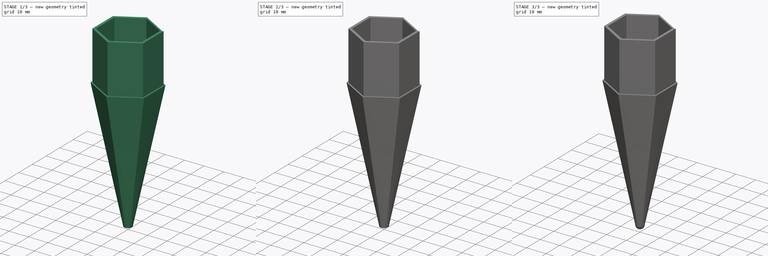
[diagram: build sequence overview — one tinted view per stage of 3, left to right]
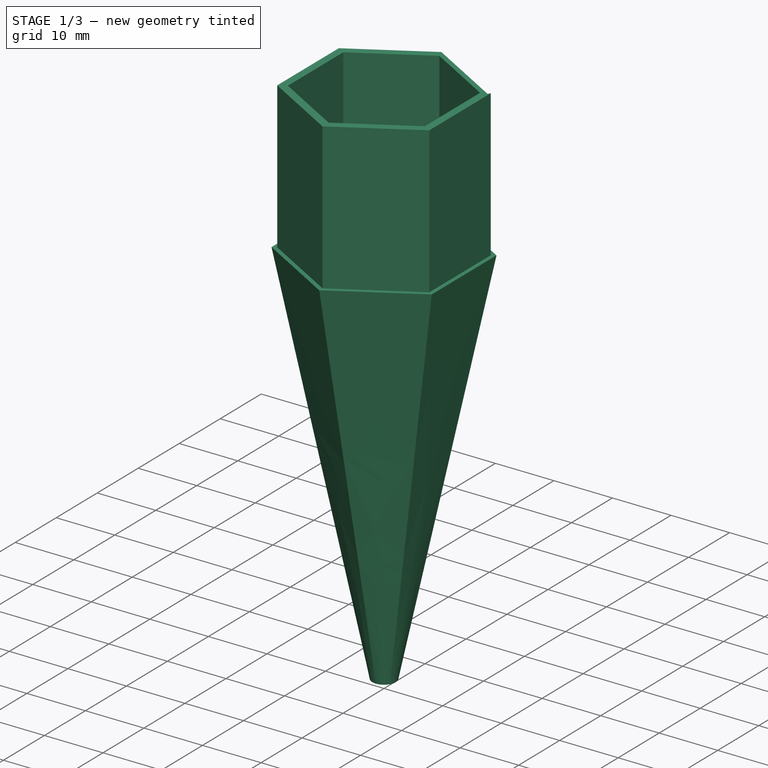
[diagram: stage 1 of 3 — iso view after this stage's code; geometry added in this stage tinted green]
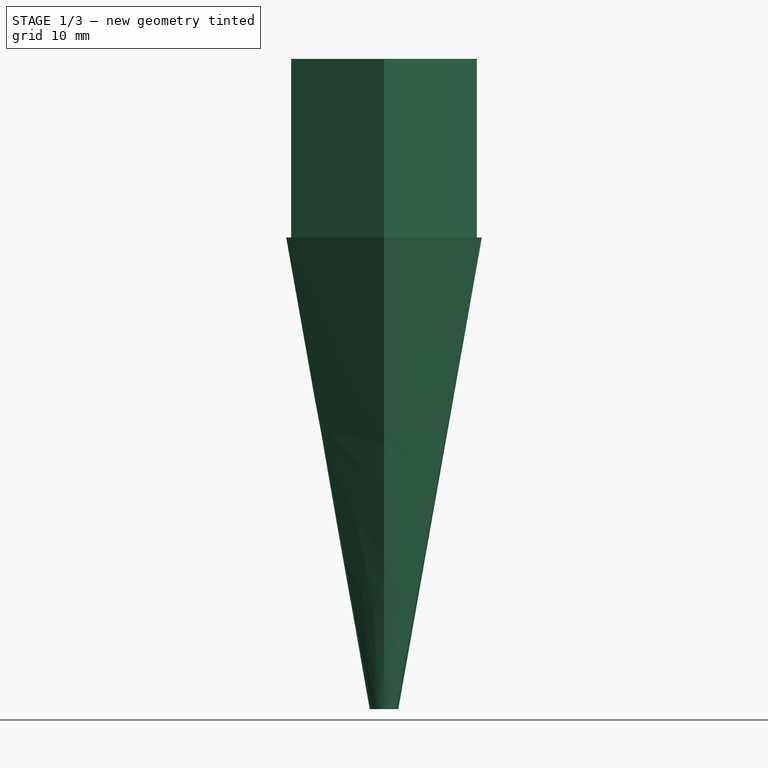
[diagram: stage 1 of 3 — front view after this stage's code; geometry added in this stage tinted green]
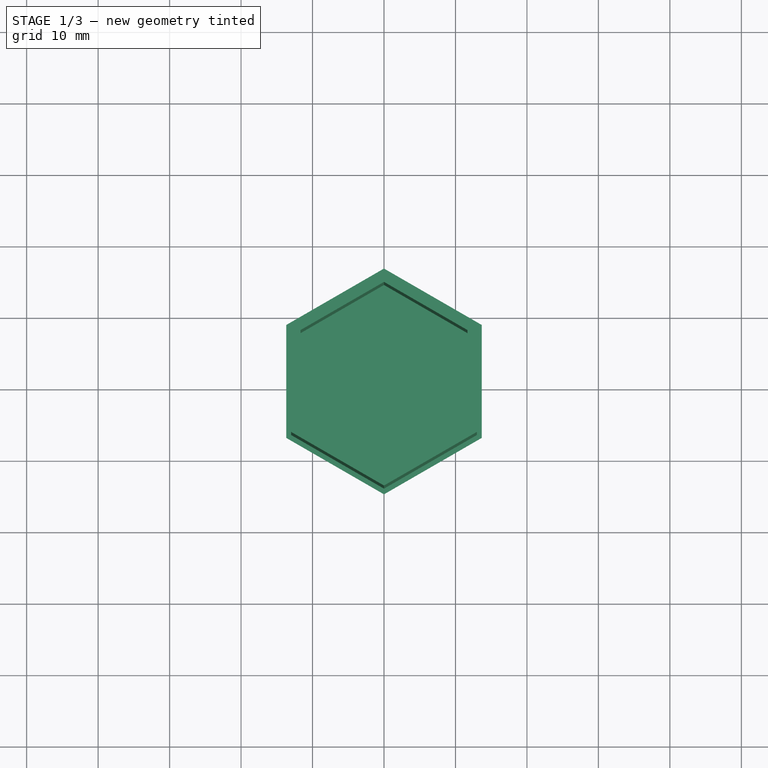
[diagram: stage 1 of 3 — top view after this stage's code; geometry added in this stage tinted green]
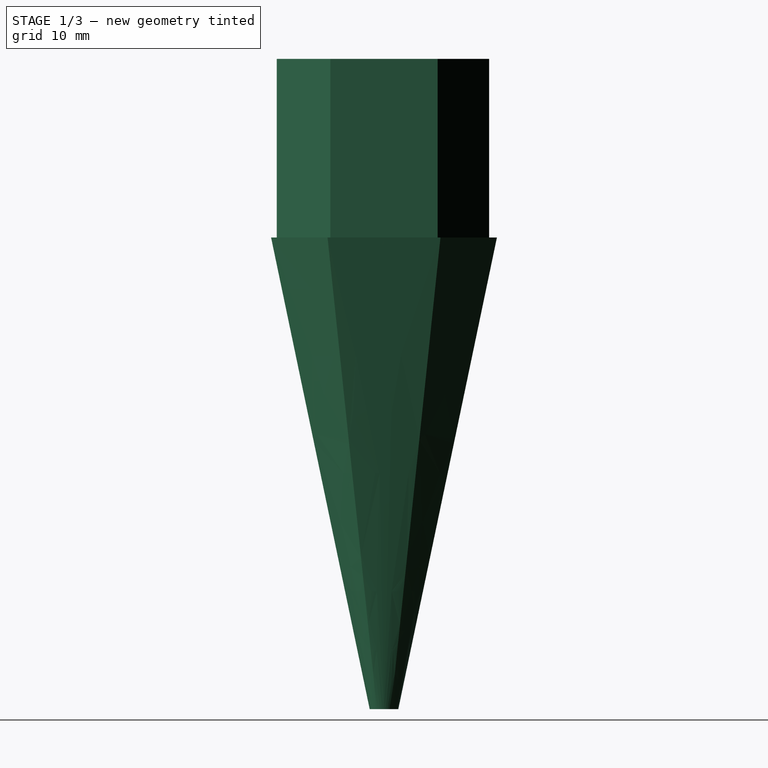
[diagram: stage 1 of 3 — right view after this stage's code; geometry added in this stage tinted green]
FCSTD DOCUMENT  (FreeCAD 0.21R33771 (Git))
Label: nosecone
License: All rights reserved
LicenseURL: http://en.wikipedia.org/wiki/All_rights_reserved
objects: Sketcher::SketchObject×7, PartDesign::Pocket×3, PartDesign::Pad×1, PartDesign::AdditiveLoft×1, PartDesign::Revolution×1, PartDesign::Body×1
note: 20 computed .brp shape members not serialized (recipe doc carries the construction recipe); baked Part::Feature solids carry a one-line shape summary decoded from their .brp

FEATURE [Sketcher::SketchObject] Sketch
  FullyConstrained = false
  MapMode = 5
  Support = -> [XY_Plane]
  sketch-geometry (15):
    g0: LineSegment StartX=-0.50397 StartY=14.7134 StartZ=0 EndX=-12.9849 EndY=7.50882 EndZ=0
    g1: LineSegment StartX=-12.9849 StartY=7.50882 StartZ=0 EndX=-12.99 EndY=-7.5 EndZ=0
    g2: LineSegment StartX=-12.99 StartY=-7.5 StartZ=0 EndX=0 EndY=-14.9997 EndZ=0
    g3: LineSegment StartX=0 StartY=-14.9997 StartZ=0 EndX=12.99 EndY=-7.5 EndZ=0
    g4: LineSegment StartX=12.99 StartY=-7.5 StartZ=0 EndX=12.99 EndY=7.5 EndZ=0
    g5: Circle CenterX=0 CenterY=0 CenterZ=0 NormalX=0 NormalY=0 NormalZ=1 AngleXU=0 Radius=14.9997
    g6: LineSegment StartX=-0.50397 StartY=14.7134 StartZ=0 EndX=12.74 EndY=7.06699 EndZ=0
    g7: LineSegment StartX=12.74 StartY=7.06699 StartZ=0 EndX=12.99 EndY=7.5 EndZ=0
    g8: LineSegment StartX=0 StartY=13.4997 StartZ=0 EndX=-11.6911 EndY=6.74983 EndZ=0
    g9: LineSegment StartX=-11.6911 StartY=6.74983 StartZ=0 EndX=-11.6911 EndY=-6.74983 EndZ=0
    g10: LineSegment StartX=-11.6911 StartY=-6.74983 StartZ=0 EndX=0 EndY=-13.4997 EndZ=0
    g11: LineSegment StartX=-7e-16 StartY=-13.4997 StartZ=0 EndX=11.6911 EndY=-6.74983 EndZ=0
    g12: LineSegment StartX=11.6911 StartY=-6.74983 StartZ=0 EndX=11.6911 EndY=6.74983 EndZ=0
    g13: LineSegment StartX=11.6911 StartY=6.74983 StartZ=0 EndX=0 EndY=13.4997 EndZ=0
    g14: Circle CenterX=0 CenterY=0 CenterZ=0 NormalX=0 NormalY=0 NormalZ=1 AngleXU=0 Radius=13.4997
  constraints (33):
    c: Coincident(g0,g1)
    c: Coincident(g1,g2)
    c: Coincident(g2,g3)
    c: Coincident(g3,g4)
    c: PointOnObject(g0,g5)
    c: PointOnObject(g1,g5)
    c: PointOnObject(g2,g5)
    c: PointOnObject(g3,g5)
    c: PointOnObject(g4,g5)
    c: Coincident(g5,g-1)
    c: Coincident(g6,g7)
    c: Coincident(g7,g4)
    c: Vertical(g4)
    c: Angle(g7,g4) = 0.523599
    c: Distance(g7) = 0.5
    c: Angle(g7,g6) = 1.5708
    c: Coincident(g0,g6)
    c: Coincident(g8,g9)
    c: Coincident(g9,g10)
    c: Coincident(g10,g11)
    c: Coincident(g11,g12)
    c: Coincident(g12,g13)
    c: Coincident(g13,g8)
    c: Equal(g8, g9-g13) x5
    c: PointOnObject(g8,g14)
    c: PointOnObject(g9,g14)
    c: PointOnObject(g10,g14)
    c: PointOnObject(g11,g14)
    c: PointOnObject(g12,g14)
    c: PointOnObject(g13,g14)
    c: Coincident(g14,g5)
    c: PointOnObject(g13,g-2)
    c: DistanceY(g2,g10) = 1.5
FEATURE [PartDesign::Pad] Pad
  Direction = (0,0,1)
  Length = 25
  Length2 = 10
  Profile = -> Sketch
  ReferenceAxis = -> Sketch [N_Axis]
  Type = 0
FEATURE [Sketcher::SketchObject] Sketch001
  ExternalGeometry = -> [Pad]
  FullyConstrained = true
  MapMode = 5
  Placement = pos=(0,0,0) rot=(1,0,0;3.14159rad)
  Support = -> [Pad]
  sketch-geometry (7):
    g0: LineSegment StartX=0 StartY=15.7997 StartZ=0 EndX=-13.6829 EndY=7.89983 EndZ=0
    g1: LineSegment StartX=-13.6829 StartY=7.89983 StartZ=0 EndX=-13.6829 EndY=-7.89983 EndZ=0
    g2: LineSegment StartX=-13.6829 StartY=-7.89983 StartZ=0 EndX=-1.67e-13 EndY=-15.7997 EndZ=0
    g3: LineSegment StartX=-1.67e-13 StartY=-15.7997 StartZ=0 EndX=13.6829 EndY=-7.89983 EndZ=0
    g4: LineSegment StartX=13.6829 StartY=-7.89983 StartZ=0 EndX=13.6829 EndY=7.89983 EndZ=0
    g5: LineSegment StartX=13.6829 StartY=7.89983 StartZ=0 EndX=0 EndY=15.7997 EndZ=0
    g6: Circle CenterX=0 CenterY=0 CenterZ=0 NormalX=0 NormalY=0 NormalZ=1 AngleXU=0 Radius=15.7997
  constraints (16):
    c: Coincident(g0,g1)
    c: Coincident(g1,g2)
    c: Coincident(g2,g3)
    c: Coincident(g3,g4)
    c: Coincident(g4,g5)
    c: Coincident(g5,g0)
    c: Equal(g0, g1-g5) x5
    c: PointOnObject(g0,g6)
    c: PointOnObject(g1,g6)
    c: PointOnObject(g2,g6)
    c: PointOnObject(g3,g6)
    c: PointOnObject(g4,g6)
    c: PointOnObject(g5,g6)
    c: Coincident(g6,g-1)
    c: PointOnObject(g5,g-2)
    c: DistanceY(g-3,g0) = 0.8
FEATURE [Sketcher::SketchObject] Sketch002
  AttachmentOffset = pos=(0,0,-66) rot=(0,0,1;0rad)
  FullyConstrained = true
  MapMode = 5
  Placement = pos=(0,0,-66) rot=(0,0,1;0rad)
  Support = -> [XY_Plane]
  sketch-geometry (1):
    g0: Circle CenterX=0 CenterY=0 CenterZ=0 NormalX=0 NormalY=0 NormalZ=1 AngleXU=0 Radius=2
  constraints (2):
    c: Coincident(g0,g-1)
    c: Radius(g0) = 2
FEATURE [PartDesign::AdditiveLoft] AdditiveLoft
  BaseFeature = -> Pad
  Closed = false
  Profile = -> Sketch001
  Ruled = false
  Sections = -> [Sketch002]
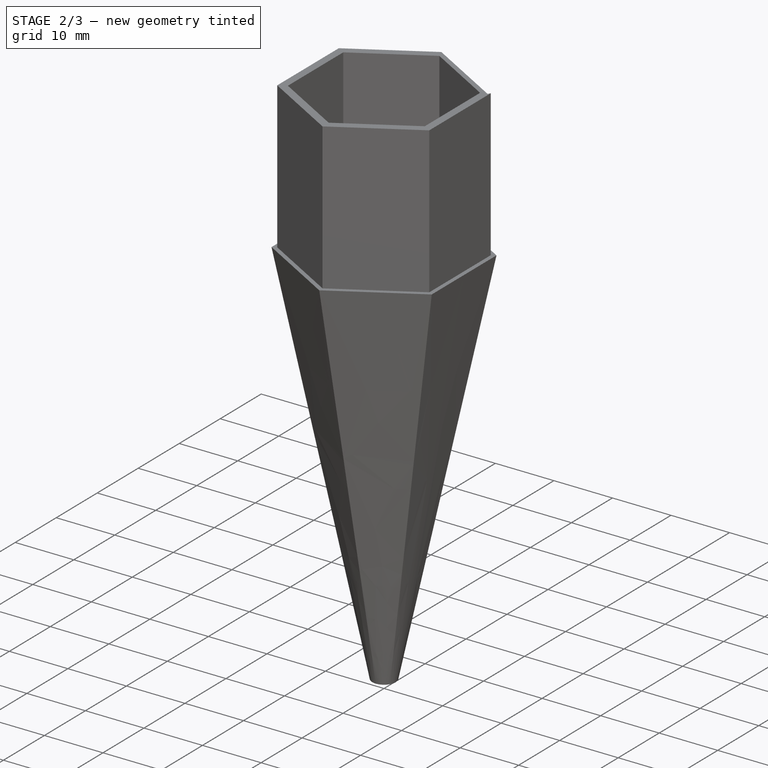
[diagram: stage 2 of 3 — iso view after this stage's code; geometry added in this stage tinted green]
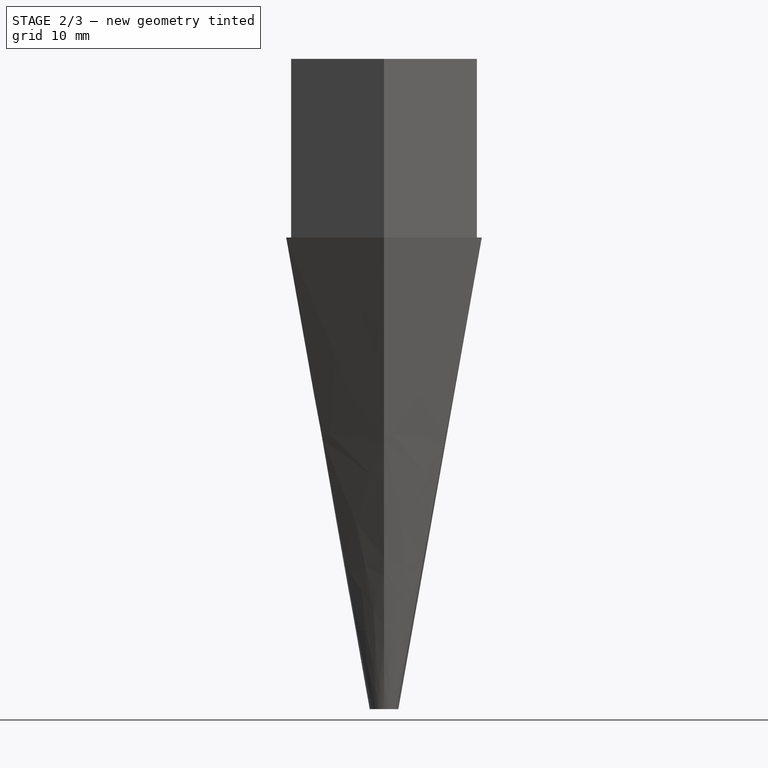
[diagram: stage 2 of 3 — front view after this stage's code; geometry added in this stage tinted green]
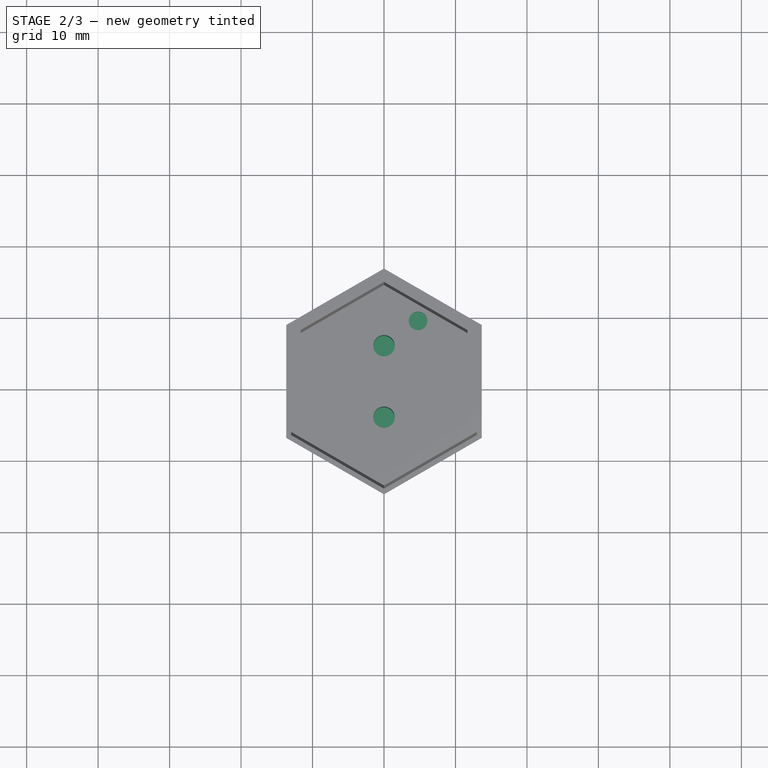
[diagram: stage 2 of 3 — top view after this stage's code; geometry added in this stage tinted green]
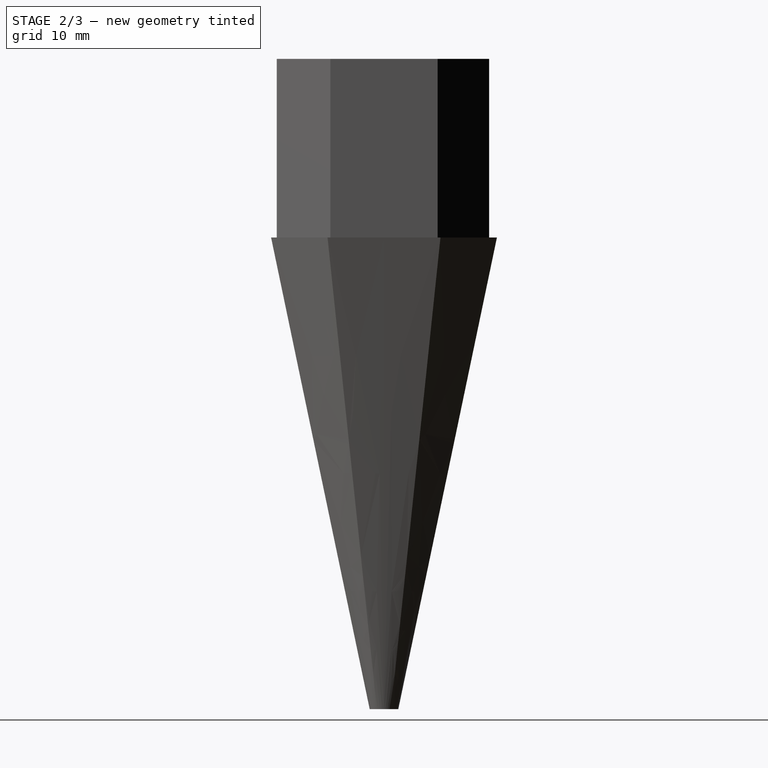
[diagram: stage 2 of 3 — right view after this stage's code; geometry added in this stage tinted green]
FEATURE [Sketcher::SketchObject] Sketch003
  FullyConstrained = false
  MapMode = 5
  Support = -> [AdditiveLoft]
  sketch-geometry (1):
    g0: Circle CenterX=4.76601 CenterY=8.46789 CenterZ=0 NormalX=0 NormalY=0 NormalZ=1 AngleXU=0 Radius=1.30046
FEATURE [PartDesign::Pocket] Pocket
  BaseFeature = -> AdditiveLoft
  Direction = (0,0,-1)
  Length = 2
  Length2 = 5
  Profile = -> Sketch003
  ReferenceAxis = -> Sketch003 [N_Axis]
  Type = 0
FEATURE [Sketcher::SketchObject] Sketch004
  FullyConstrained = true
  MapMode = 5
  Support = -> [Pocket]
  sketch-geometry (2):
    g0: Circle CenterX=0 CenterY=5 CenterZ=0 NormalX=0 NormalY=0 NormalZ=1 AngleXU=0 Radius=1.5
    g1: Circle CenterX=0 CenterY=-5 CenterZ=0 NormalX=0 NormalY=0 NormalZ=1 AngleXU=0 Radius=1.5
  constraints (6):
    c: PointOnObject(g0,g-2)
    c: Radius(g0) = 1.5
    c: DistanceY(g-1,g0) = 5
    c: PointOnObject(g1,g-2)
    c: Radius(g1) = 1.5
    c: DistanceY(g1,g-1) = 5
FEATURE [PartDesign::Pocket] Pocket001
  BaseFeature = -> Pocket
  Direction = (0,0,-1)
  Length = 8
  Length2 = 5
  Profile = -> Sketch004
  ReferenceAxis = -> Sketch004 [N_Axis]
  Type = 0
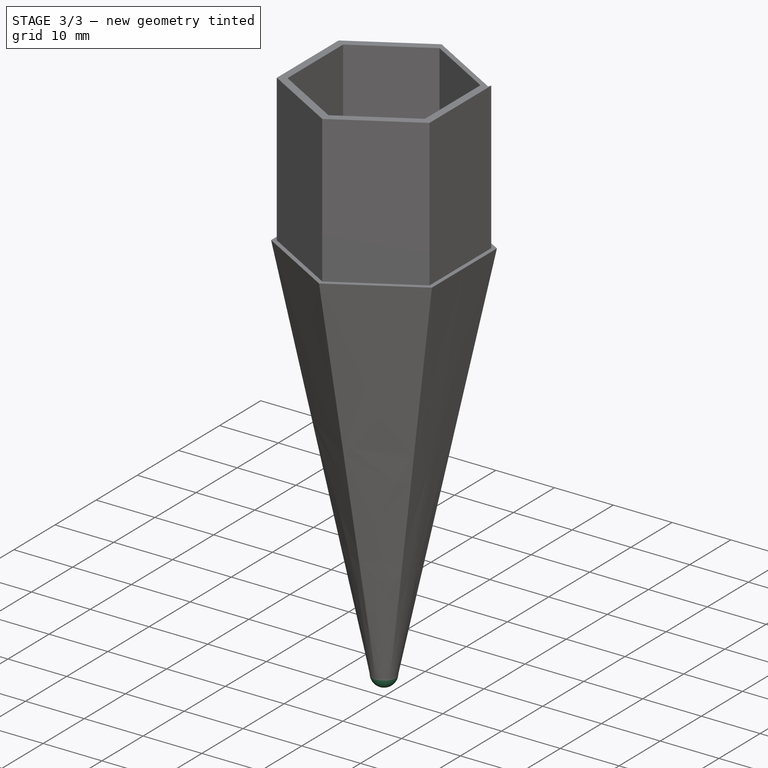
[diagram: stage 3 of 3 — iso view after this stage's code; geometry added in this stage tinted green]
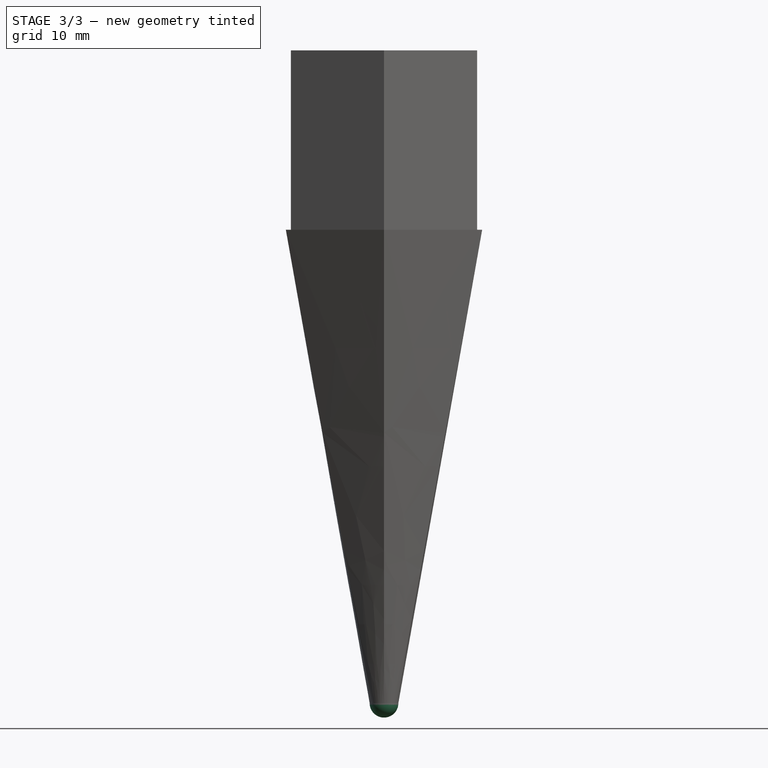
[diagram: stage 3 of 3 — front view after this stage's code; geometry added in this stage tinted green]
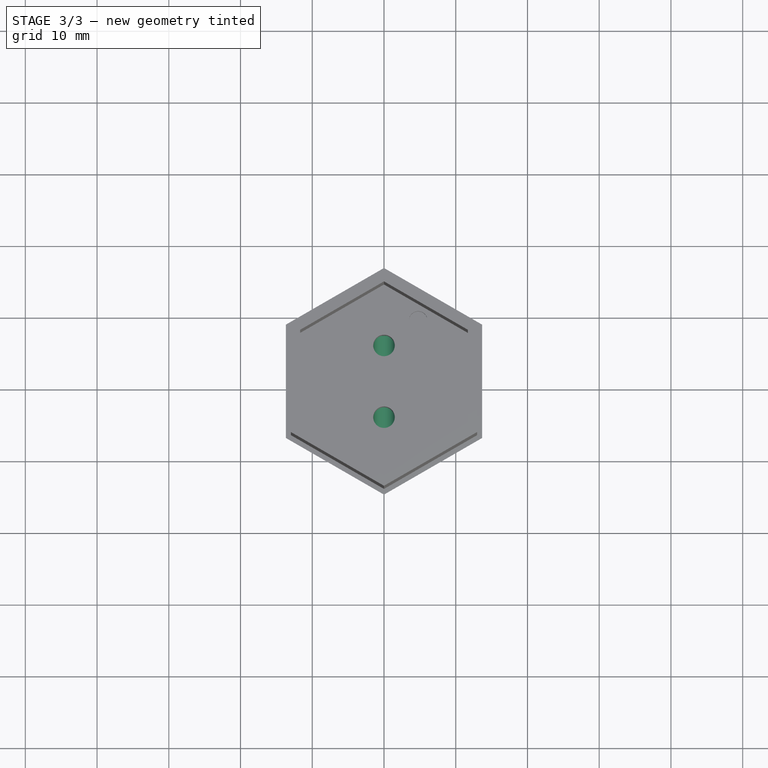
[diagram: stage 3 of 3 — top view after this stage's code; geometry added in this stage tinted green]
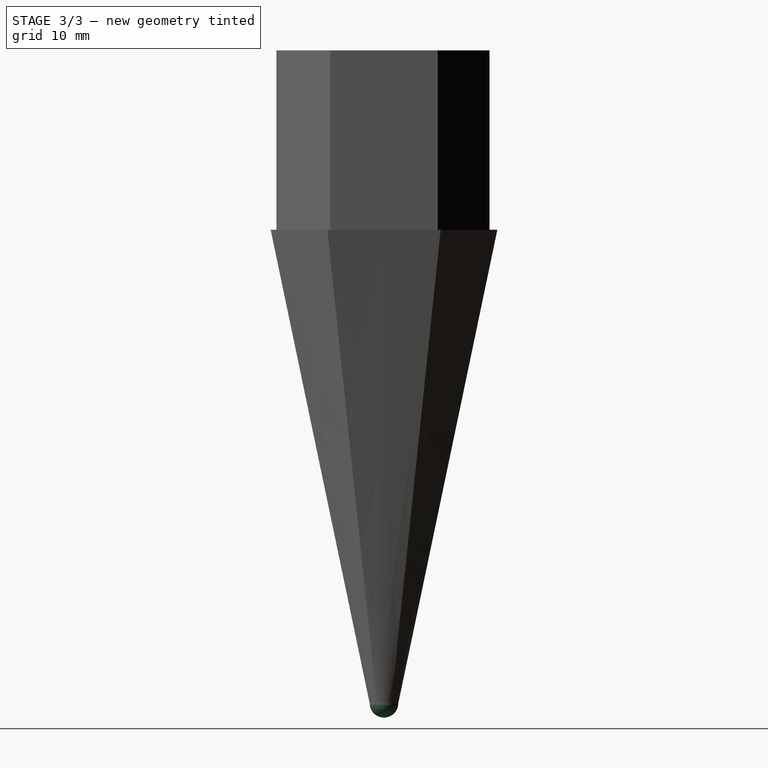
[diagram: stage 3 of 3 — right view after this stage's code; geometry added in this stage tinted green]
FEATURE [Sketcher::SketchObject] Sketch005
  ExternalGeometry = -> [Pocket001]
  FullyConstrained = false
  MapMode = 5
  Placement = pos=(0,0,0) rot=(1,0,0;1.5708rad)
  Support = -> [XZ_Plane]
  sketch-geometry (1):
    g0: Circle CenterX=0 CenterY=-8.01217 CenterZ=0 NormalX=0 NormalY=0 NormalZ=1 AngleXU=0 Radius=1.50005
  constraints (2):
    c: PointOnObject(g0,g-2)
    c: PointOnObject(g-3,g0)
FEATURE [PartDesign::Pocket] Pocket002
  BaseFeature = -> Pocket001
  Direction = (0,1,2e-16)
  Length = 6.5
  Length2 = 6.5
  Profile = -> Sketch005
  ReferenceAxis = -> Sketch005 [N_Axis]
  Type = 4
FEATURE [Sketcher::SketchObject] Sketch006
  ExternalGeometry = -> [Pocket002]
  FullyConstrained = true
  MapMode = 5
  Placement = pos=(0,0,0) rot=(1,0,0;1.5708rad)
  Support = -> [XZ_Plane]
  sketch-geometry (3):
    g0: LineSegment StartX=-7e-16 StartY=-66 StartZ=0 EndX=2 EndY=-66 EndZ=0
    g1: LineSegment StartX=-7e-16 StartY=-66 StartZ=0 EndX=-7e-16 EndY=-68 EndZ=0
    g2: ArcOfCircle CenterX=-7e-16 CenterY=-66 CenterZ=0 NormalX=0 NormalY=0 NormalZ=1 AngleXU=0 Radius=2 StartAngle=4.71239 EndAngle=6.28319
  constraints (8):
    c: Coincident(g0,g-3)
    c: Horizontal(g0)
    c: DistanceX(g0,g0) = 2
    c: Coincident(g1,g0)
    c: Vertical(g1)
    c: Coincident(g2,g0)
    c: Coincident(g2,g1)
    c: Coincident(g2,g0)
FEATURE [PartDesign::Revolution] Revolution
  Angle = 360
  Axis = (0,-2e-16,1)
  Base = (0,0,0)
  BaseFeature = -> Pocket002
  Profile = -> Sketch006
  ReferenceAxis = -> Sketch006 [V_Axis]
  Reversed = true
FEATURE [PartDesign::Body] Body
  Group = -> [Sketch,Pad,Sketch001,Sketch002,AdditiveLoft,Sketch003,Pocket,Sketch004,Pocket001,Sketch005,Pocket002,Sketch006,Revolution]
  Origin = -> Origin
  Tip = -> Revolution
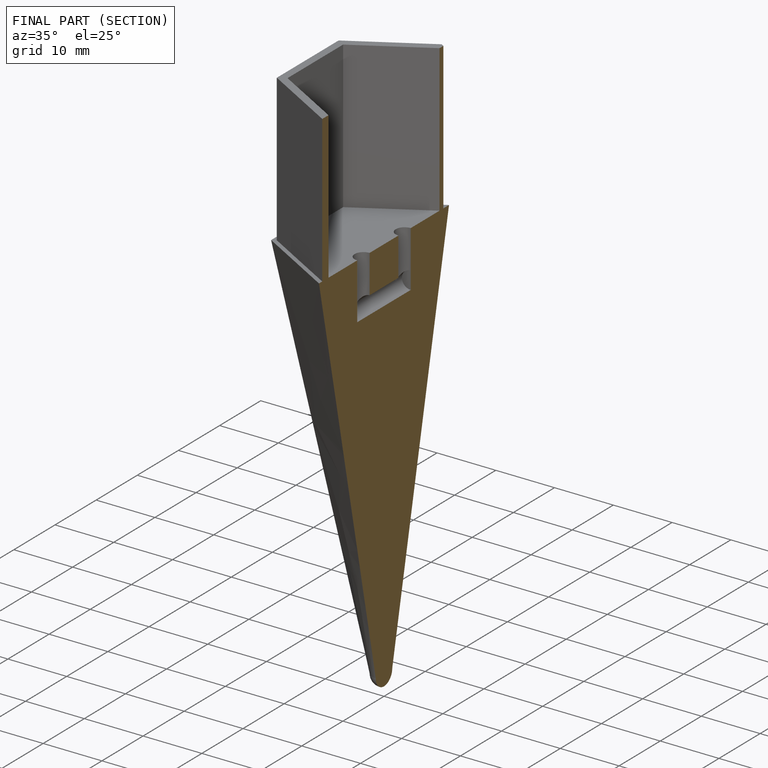
[diagram: finished part — half-section view (interior)]
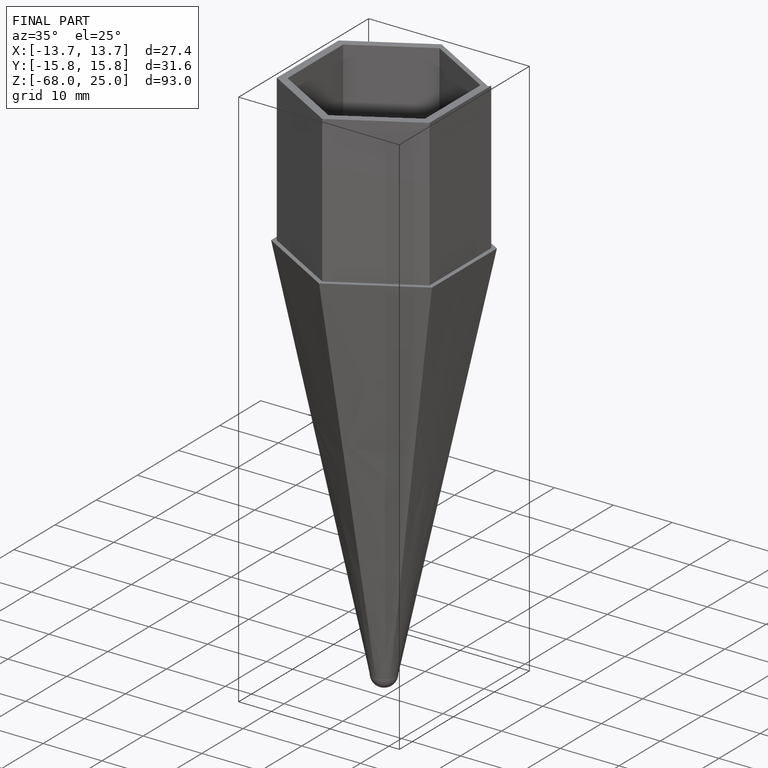
[diagram: finished part — iso view with bounding-box wireframe]
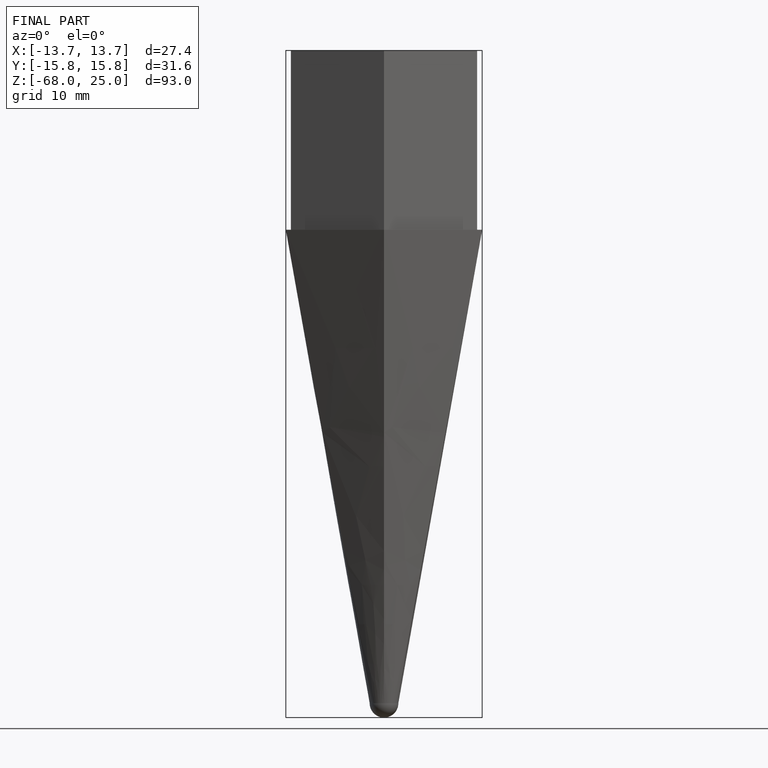
[diagram: finished part — front view with bounding-box wireframe]
